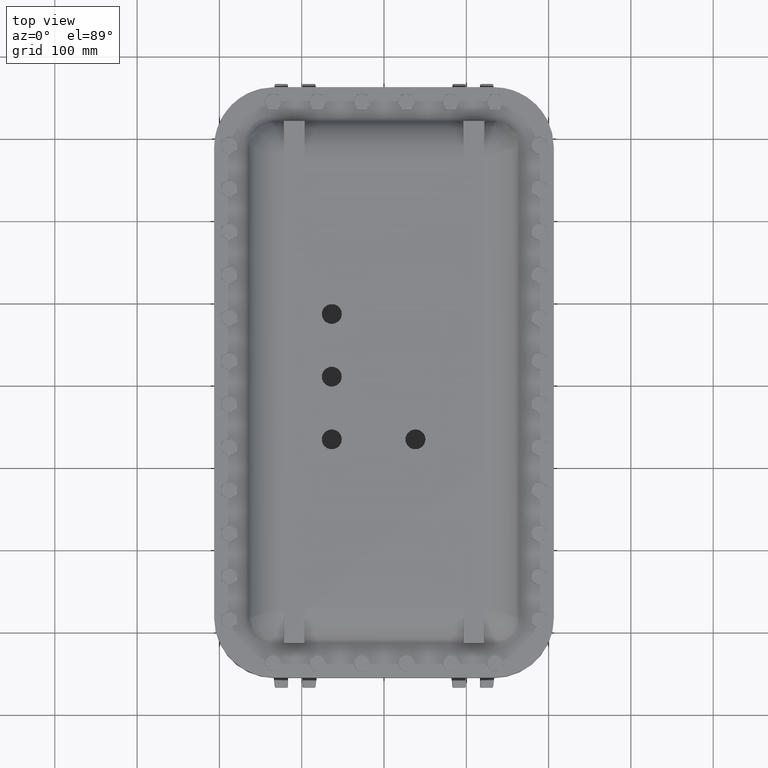
[diagram: clean part render]
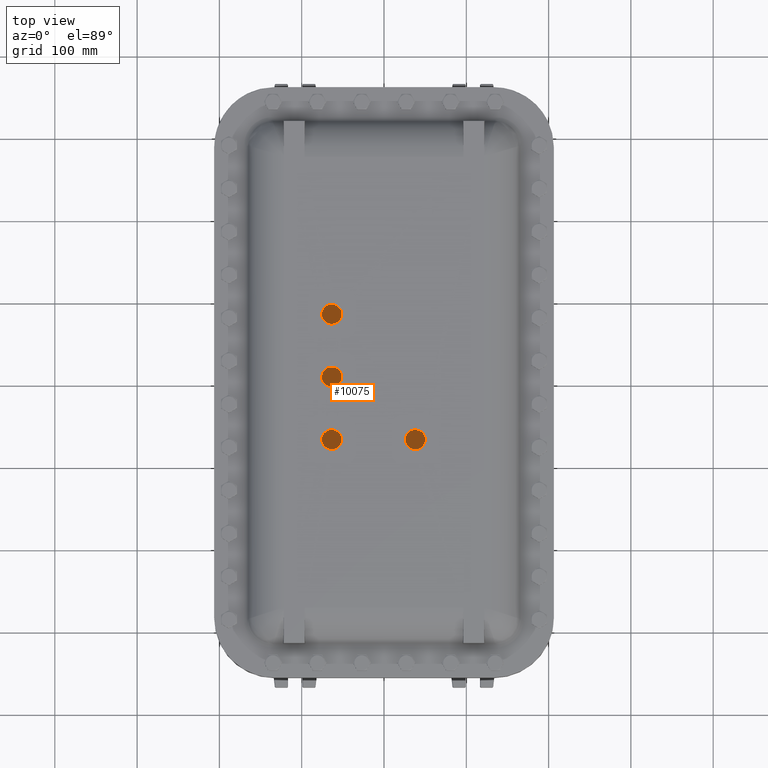
[diagram: same view with one face highlighted and labeled with its STEP entity id]
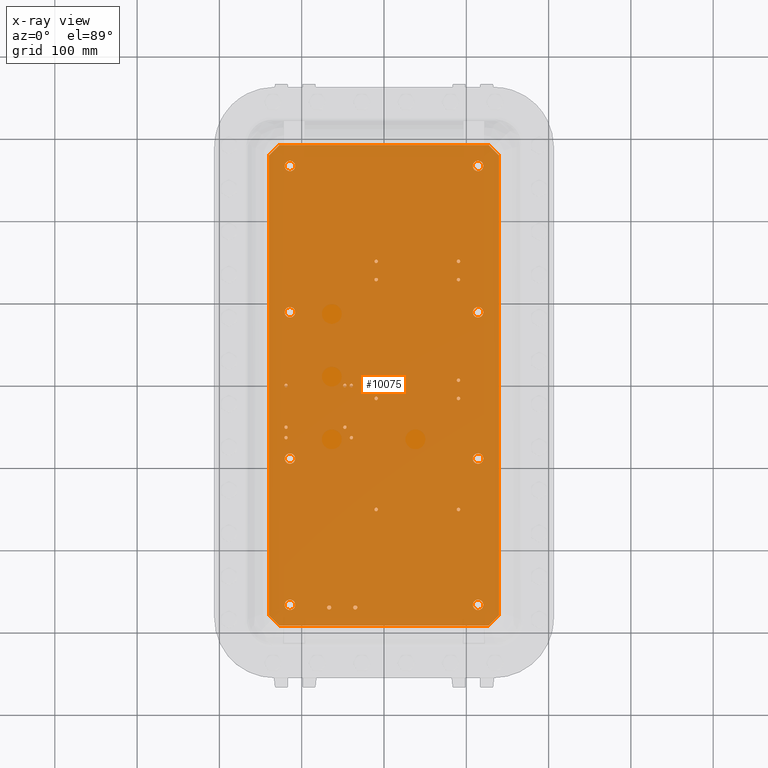
[diagram: x-ray of the same camera — body ghosted, the highlighted face saturated]
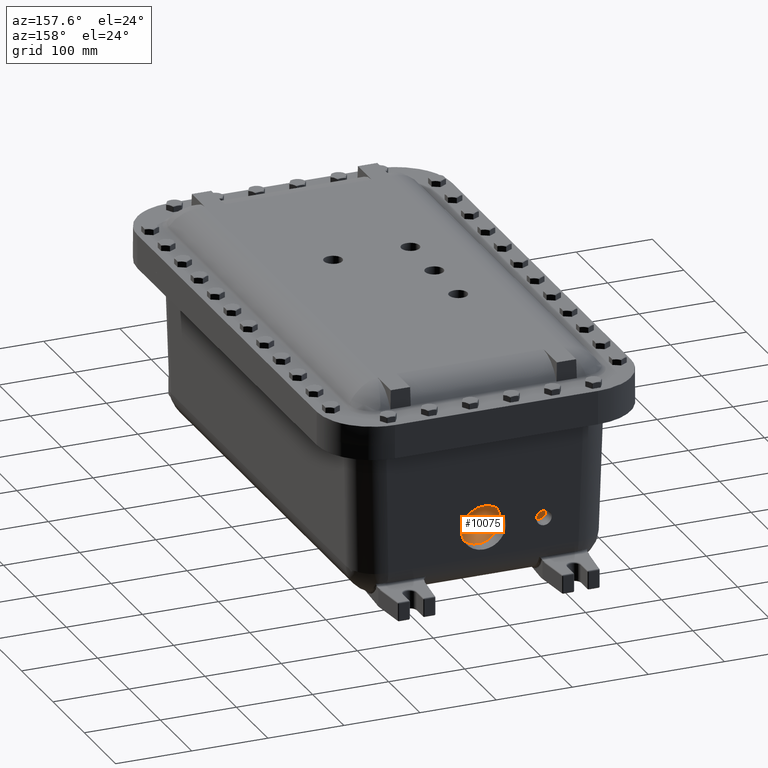
[diagram: same view with one face highlighted and labeled with its STEP entity id]
A machine part, top view. The second image highlights one B-rep face of the part: STEP entity #10075.
The next image is the same camera in x-ray: the body ghosted, the highlighted face saturated — about 99% of this face is hidden behind the body in this view.
A second angle (auxiliary view) of the same face is appended — the face is thin or edge-on in the first view.
In plain terms, the highlighted planar face has unit normal (0, 0, 1).
Its self-contained STEP definition (entity closure, byte-faithful):
#9 = VERTEX_POINT ( 'NONE', #26543 ) ;
#35 = ORIENTED_EDGE ( 'NONE', *, *, #21642, .F. ) ;
#38 = VERTEX_POINT ( 'NONE', #6339 ) ;
#154 = ORIENTED_EDGE ( 'NONE', *, *, #10491, .T. ) ;
#160 = DIRECTION ( 'NONE',  ( -0.0000000000000000000, -0.0000000000000000000, -1.000000000000000000 ) ) ;
#171 = LINE ( 'NONE', #28805, #23419 ) ;
#184 = ORIENTED_EDGE ( 'NONE', *, *, #14988, .F. ) ;
#214 = CARTESIAN_POINT ( 'NONE',  ( 3.645677165354332100, 5.063000000000002400, 0.1060000000000000000 ) ) ;
#220 = EDGE_LOOP ( 'NONE', ( #16998, #16288 ) ) ;
#260 = EDGE_CURVE ( 'NONE', #26400, #9053, #15877, .T. ) ;
#304 = EDGE_CURVE ( 'NONE', #21703, #395, #21855, .T. ) ;
#347 = DIRECTION ( 'NONE',  ( -0.0000000000000000000, -0.0000000000000000000, 1.000000000000000000 ) ) ;
#379 = FACE_BOUND ( 'NONE', #8863, .T. ) ;
#395 = VERTEX_POINT ( 'NONE', #10474 ) ;
#411 = FACE_BOUND ( 'NONE', #11039, .T. ) ;
#451 = VERTEX_POINT ( 'NONE', #26699 ) ;
#510 = CARTESIAN_POINT ( 'NONE',  ( -0.4576771653543309500, 0.2500000000000030500, 0.1060000000000000000 ) ) ;
#659 = AXIS2_PLACEMENT_3D ( 'NONE', #29115, #15625, #2151 ) ;
#677 = DIRECTION ( 'NONE',  ( -0.0000000000000000000, -0.0000000000000000000, -1.000000000000000000 ) ) ;
#748 = AXIS2_PLACEMENT_3D ( 'NONE', #12388, #28123, #14632 ) ;
#749 = CARTESIAN_POINT ( 'NONE',  ( 4.500000000000000900, -3.750000000000000000, 0.1060000000000000100 ) ) ;
#836 = AXIS2_PLACEMENT_3D ( 'NONE', #4348, #20104, #6624 ) ;
#877 = AXIS2_PLACEMENT_3D ( 'NONE', #16961, #3434, #19198 ) ;
#934 = VERTEX_POINT ( 'NONE', #26089 ) ;
#938 = CARTESIAN_POINT ( 'NONE',  ( 3.645677165354332100, -5.936999999999997600, 0.1060000000000000000 ) ) ;
#942 = CARTESIAN_POINT ( 'NONE',  ( 5.000000000000003600, 11.50000000000000200, 0.1060000000000000000 ) ) ;
#958 = AXIS2_PLACEMENT_3D ( 'NONE', #22819, #9339, #25106 ) ;
#959 = DIRECTION ( 'NONE',  ( -0.0000000000000000000, -0.0000000000000000000, 1.000000000000000000 ) ) ;
#1011 = AXIS2_PLACEMENT_3D ( 'NONE', #19708, #6230, #21991 ) ;
#1076 = DIRECTION ( 'NONE',  ( 0.0000000000000000000, 1.000000000000000000, 0.0000000000000000000 ) ) ;
#1088 = VECTOR ( 'NONE', #28928, 39.37007874015748100 ) ;
#1129 = CARTESIAN_POINT ( 'NONE',  ( 4.500000000000000000, 3.249999999999999600, 0.1060000000000000100 ) ) ;
#1142 = CIRCLE ( 'NONE', #23229, 0.2499999999999998100 ) ;
#1187 = AXIS2_PLACEMENT_3D ( 'NONE', #14180, #677, #16442 ) ;
#1232 = CIRCLE ( 'NONE', #17520, 0.08267716535433068700 ) ;
#1243 = CIRCLE ( 'NONE', #4449, 0.07950000000000007100 ) ;
#1277 = ORIENTED_EDGE ( 'NONE', *, *, #13690, .F. ) ;
#1306 = ORIENTED_EDGE ( 'NONE', *, *, #260, .T. ) ;
#1417 = AXIS2_PLACEMENT_3D ( 'NONE', #17438, #3933, #19680 ) ;
#1431 = EDGE_LOOP ( 'NONE', ( #14123, #5275 ) ) ;
#1442 = CARTESIAN_POINT ( 'NONE',  ( -4.499999999999999100, -10.50000000000000200, 0.1060000000000000100 ) ) ;
#1524 = DIRECTION ( 'NONE',  ( -0.0000000000000000000, -0.0000000000000000000, 1.000000000000000000 ) ) ;
#1541 = AXIS2_PLACEMENT_3D ( 'NONE', #13636, #160, #15921 ) ;
#1575 = EDGE_LOOP ( 'NONE', ( #35, #22956 ) ) ;
#1592 = VERTEX_POINT ( 'NONE', #17856 ) ;
#1606 = CIRCLE ( 'NONE', #16165, 0.07950000000000007100 ) ;
#1638 = DIRECTION ( 'NONE',  ( 1.000000000000000000, 0.0000000000000000000, 0.0000000000000000000 ) ) ;
#1711 = DIRECTION ( 'NONE',  ( -0.0000000000000000000, -0.0000000000000000000, 1.000000000000000000 ) ) ;
#1807 = EDGE_LOOP ( 'NONE', ( #21336, #25716 ) ) ;
#1887 = DIRECTION ( 'NONE',  ( -0.0000000000000000000, -0.0000000000000000000, 1.000000000000000000 ) ) ;
#1911 = ORIENTED_EDGE ( 'NONE', *, *, #26582, .F. ) ;
#1926 = DIRECTION ( 'NONE',  ( -0.0000000000000000000, -0.0000000000000000000, 1.000000000000000000 ) ) ;
#1943 = DIRECTION ( 'NONE',  ( -0.0000000000000000000, -0.0000000000000000000, 1.000000000000000000 ) ) ;
#1981 = VERTEX_POINT ( 'NONE', #7150 ) ;
#1992 = DIRECTION ( 'NONE',  ( 0.0000000000000000000, 1.000000000000000000, 0.0000000000000000000 ) ) ;
#1997 = CARTESIAN_POINT ( 'NONE',  ( 4.500000000000000000, 10.50000000000000200, 0.1060000000000000100 ) ) ;
#2069 = VERTEX_POINT ( 'NONE', #18662 ) ;
#2109 = EDGE_LOOP ( 'NONE', ( #18029, #26467 ) ) ;
#2124 = CARTESIAN_POINT ( 'NONE',  ( 3.563000000000001500, 0.2500000000000030500, 0.1060000000000000000 ) ) ;
#2146 = CARTESIAN_POINT ( 'NONE',  ( 5.500000000000001800, 11.00000000000000500, 0.1060000000000000000 ) ) ;
#2151 = DIRECTION ( 'NONE',  ( 1.000000000000000000, 0.0000000000000000000, 0.0000000000000000000 ) ) ;
#2165 = VERTEX_POINT ( 'NONE', #938 ) ;
#2175 = CIRCLE ( 'NONE', #7176, 0.2500000000000008900 ) ;
#2182 = VERTEX_POINT ( 'NONE', #16801 ) ;
#2252 = EDGE_CURVE ( 'NONE', #22846, #23483, #6245, .T. ) ;
#2254 = EDGE_LOOP ( 'NONE', ( #11695, #5026 ) ) ;
#2280 = DIRECTION ( 'NONE',  ( -0.0000000000000000000, -0.0000000000000000000, -1.000000000000000000 ) ) ;
#2339 = ORIENTED_EDGE ( 'NONE', *, *, #21692, .F. ) ;
#2354 = ORIENTED_EDGE ( 'NONE', *, *, #8951, .T. ) ;
#2441 = EDGE_CURVE ( 'NONE', #8564, #9785, #4256, .T. ) ;
#2560 = VERTEX_POINT ( 'NONE', #6921 ) ;
#2598 = DIRECTION ( 'NONE',  ( -0.0000000000000000000, -0.0000000000000000000, 1.000000000000000000 ) ) ;
#2610 = DIRECTION ( 'NONE',  ( -0.0000000000000000000, -0.0000000000000000000, -1.000000000000000000 ) ) ;
#2646 = VERTEX_POINT ( 'NONE', #18523 ) ;
#2647 = CIRCLE ( 'NONE', #27161, 0.08267716535433068700 ) ;
#2648 = CARTESIAN_POINT ( 'NONE',  ( -2.725499999999999800, -10.62499999999999600, 0.1060000000000000400 ) ) ;
#2655 = CARTESIAN_POINT ( 'NONE',  ( -1.561999999999999800, 2.185478394931410600E-015, 0.1060000000000000000 ) ) ;
#2698 = ORIENTED_EDGE ( 'NONE', *, *, #7037, .F. ) ;
#2742 = VERTEX_POINT ( 'NONE', #7508 ) ;
#2806 = ORIENTED_EDGE ( 'NONE', *, *, #11225, .F. ) ;
#2828 = CIRCLE ( 'NONE', #14596, 0.07950000000000007100 ) ;
#2897 = EDGE_LOOP ( 'NONE', ( #2806, #1277 ) ) ;
#2963 = ORIENTED_EDGE ( 'NONE', *, *, #20729, .F. ) ;
#2982 = DIRECTION ( 'NONE',  ( 1.000000000000000000, -2.185478394931410600E-016, 0.0000000000000000000 ) ) ;
#3007 = CARTESIAN_POINT ( 'NONE',  ( -4.766499999999999700, -2.499999999999996900, 0.1060000000000000000 ) ) ;
#3032 = CARTESIAN_POINT ( 'NONE',  ( -1.561999999999999800, 2.185478394931410600E-015, 0.1060000000000000000 ) ) ;
#3111 = DIRECTION ( 'NONE',  ( -0.0000000000000000000, -0.0000000000000000000, 1.000000000000000000 ) ) ;
#3146 = DIRECTION ( 'NONE',  ( -0.0000000000000000000, -0.0000000000000000000, -1.000000000000000000 ) ) ;
#3171 = CIRCLE ( 'NONE', #24393, 0.2500000000000008900 ) ;
#3250 = CIRCLE ( 'NONE', #23620, 0.1004999999999996500 ) ;
#3319 = ORIENTED_EDGE ( 'NONE', *, *, #7251, .T. ) ;
#3346 = CARTESIAN_POINT ( 'NONE',  ( -1.874999999999999600, -1.999999999999997300, 0.1060000000000000000 ) ) ;
#3434 = DIRECTION ( 'NONE',  ( -0.0000000000000000000, -0.0000000000000000000, 1.000000000000000000 ) ) ;
#3524 = AXIS2_PLACEMENT_3D ( 'NONE', #25743, #12235, #27992 ) ;
#3669 = DIRECTION ( 'NONE',  ( 0.0000000000000000000, 1.000000000000000000, 0.0000000000000000000 ) ) ;
#3725 = LINE ( 'NONE', #5230, #4439 ) ;
#3812 = CIRCLE ( 'NONE', #23440, 0.2500000000000008900 ) ;
#3933 = DIRECTION ( 'NONE',  ( -0.0000000000000000000, -0.0000000000000000000, -1.000000000000000000 ) ) ;
#3958 = AXIS2_PLACEMENT_3D ( 'NONE', #2655, #18383, #4894 ) ;
#4143 = CIRCLE ( 'NONE', #1187, 0.2500000000000008900 ) ;
#4167 = CIRCLE ( 'NONE', #12140, 0.08267716535433089500 ) ;
#4231 = DIRECTION ( 'NONE',  ( 0.0000000000000000000, 1.000000000000000000, 0.0000000000000000000 ) ) ;
#4236 = CIRCLE ( 'NONE', #1541, 0.2499999999999998100 ) ;
#4256 = CIRCLE ( 'NONE', #5512, 0.07950000000000007100 ) ;
#4305 = CIRCLE ( 'NONE', #17156, 0.08267716535433089500 ) ;
#4348 = CARTESIAN_POINT ( 'NONE',  ( 3.563000000000001500, -0.6249999999999967800, 0.1060000000000000000 ) ) ;
#4358 = DIRECTION ( 'NONE',  ( 1.000000000000000000, 0.0000000000000000000, 0.0000000000000000000 ) ) ;
#4371 = ORIENTED_EDGE ( 'NONE', *, *, #304, .F. ) ;
#4373 = CARTESIAN_POINT ( 'NONE',  ( 4.500000000000000000, 10.25000000000000200, 0.1060000000000000100 ) ) ;
#4424 = EDGE_LOOP ( 'NONE', ( #11650, #154 ) ) ;
#4427 = EDGE_CURVE ( 'NONE', #19892, #1592, #23541, .T. ) ;
#4439 = VECTOR ( 'NONE', #2982, 39.37007874015748100 ) ;
#4449 = AXIS2_PLACEMENT_3D ( 'NONE', #20257, #6785, #22554 ) ;
#4578 = CIRCLE ( 'NONE', #15328, 0.07950000000000007100 ) ;
#4617 = CARTESIAN_POINT ( 'NONE',  ( -0.4576771653543309500, -0.6249999999999967800, 0.1060000000000000000 ) ) ;
#4756 = DIRECTION ( 'NONE',  ( -0.0000000000000000000, -0.0000000000000000000, 1.000000000000000000 ) ) ;
#4822 = VECTOR ( 'NONE', #21219, 39.37007874015748100 ) ;
#4836 = CIRCLE ( 'NONE', #21793, 0.07950000000000007100 ) ;
#4839 = FACE_BOUND ( 'NONE', #21093, .T. ) ;
#4894 = DIRECTION ( 'NONE',  ( 1.000000000000000000, 0.0000000000000000000, 0.0000000000000000000 ) ) ;
#4910 = CIRCLE ( 'NONE', #8735, 0.07950000000000007100 ) ;
#4931 = CARTESIAN_POINT ( 'NONE',  ( -0.3750000000000002200, -0.6249999999999967800, 0.1060000000000000000 ) ) ;
#4980 = FACE_BOUND ( 'NONE', #1807, .T. ) ;
#4999 = VERTEX_POINT ( 'NONE', #27840 ) ;
#5026 = ORIENTED_EDGE ( 'NONE', *, *, #13277, .F. ) ;
#5043 = EDGE_CURVE ( 'NONE', #10154, #28409, #22795, .T. ) ;
#5211 = CARTESIAN_POINT ( 'NONE',  ( -4.500000000000000000, 10.24999999999999600, 0.1060000000000000100 ) ) ;
#5230 = CARTESIAN_POINT ( 'NONE',  ( -4.999999999999999100, -11.49999999999999600, 0.1060000000000000000 ) ) ;
#5275 = ORIENTED_EDGE ( 'NONE', *, *, #24673, .F. ) ;
#5290 = DIRECTION ( 'NONE',  ( 1.000000000000000000, 0.0000000000000000000, 0.0000000000000000000 ) ) ;
#5332 = CIRCLE ( 'NONE', #3958, 0.07950000000000007100 ) ;
#5512 = AXIS2_PLACEMENT_3D ( 'NONE', #20111, #6626, #22401 ) ;
#5562 = AXIS2_PLACEMENT_3D ( 'NONE', #4931, #20671, #7195 ) ;
#5616 = DIRECTION ( 'NONE',  ( 1.000000000000000000, 0.0000000000000000000, 0.0000000000000000000 ) ) ;
#5641 = FACE_BOUND ( 'NONE', #16180, .T. ) ;
#5666 = FACE_BOUND ( 'NONE', #27517, .T. ) ;
#5909 = AXIS2_PLACEMENT_3D ( 'NONE', #19558, #6087, #21854 ) ;
#5919 = CARTESIAN_POINT ( 'NONE',  ( -1.954499999999999700, 2.195214336984632100E-015, 0.1060000000000000000 ) ) ;
#5982 = CARTESIAN_POINT ( 'NONE',  ( -1.561999999999999800, -2.499999999999996900, 0.1060000000000000000 ) ) ;
#5985 = EDGE_CURVE ( 'NONE', #2742, #13311, #9728, .T. ) ;
#6087 = DIRECTION ( 'NONE',  ( -0.0000000000000000000, -0.0000000000000000000, 1.000000000000000000 ) ) ;
#6130 = VERTEX_POINT ( 'NONE', #16947 ) ;
#6180 = VERTEX_POINT ( 'NONE', #15244 ) ;
#6230 = DIRECTION ( 'NONE',  ( -0.0000000000000000000, -0.0000000000000000000, 1.000000000000000000 ) ) ;
#6240 = VERTEX_POINT ( 'NONE', #10934 ) ;
#6245 = CIRCLE ( 'NONE', #16681, 0.2500000000000008900 ) ;
#6299 = EDGE_LOOP ( 'NONE', ( #13871, #9221 ) ) ;
#6325 = CARTESIAN_POINT ( 'NONE',  ( 3.480322834645670500, -0.6249999999999967800, 0.1060000000000000000 ) ) ;
#6339 = CARTESIAN_POINT ( 'NONE',  ( -4.999999999999999100, -11.49999999999999600, 0.1060000000000000000 ) ) ;
#6357 = FACE_BOUND ( 'NONE', #13959, .T. ) ;
#6389 = FACE_BOUND ( 'NONE', #2109, .T. ) ;
#6449 = ORIENTED_EDGE ( 'NONE', *, *, #21758, .F. ) ;
#6479 = CARTESIAN_POINT ( 'NONE',  ( -0.3750000000000002200, 0.2500000000000030500, 0.1060000000000000000 ) ) ;
#6516 = CARTESIAN_POINT ( 'NONE',  ( -1.274500000000000200, -10.62499999999999600, 0.1060000000000000400 ) ) ;
#6561 = AXIS2_PLACEMENT_3D ( 'NONE', #22056, #8565, #24324 ) ;
#6598 = DIRECTION ( 'NONE',  ( -0.0000000000000000000, -0.0000000000000000000, 1.000000000000000000 ) ) ;
#6624 = DIRECTION ( 'NONE',  ( 1.000000000000000000, 0.0000000000000000000, 0.0000000000000000000 ) ) ;
#6626 = DIRECTION ( 'NONE',  ( -0.0000000000000000000, -0.0000000000000000000, 1.000000000000000000 ) ) ;
#6683 = ORIENTED_EDGE ( 'NONE', *, *, #12033, .F. ) ;
#6783 = EDGE_LOOP ( 'NONE', ( #7575, #9959 ) ) ;
#6785 = DIRECTION ( 'NONE',  ( -0.0000000000000000000, -0.0000000000000000000, 1.000000000000000000 ) ) ;
#6821 = EDGE_CURVE ( 'NONE', #28409, #25891, #171, .T. ) ;
#6921 = CARTESIAN_POINT ( 'NONE',  ( 3.480322834645670500, 5.063000000000002400, 0.1060000000000000000 ) ) ;
#7037 = EDGE_CURVE ( 'NONE', #9089, #934, #13198, .T. ) ;
#7150 = CARTESIAN_POINT ( 'NONE',  ( -1.475499999999999600, -10.62499999999999600, 0.1060000000000000400 ) ) ;
#7176 = AXIS2_PLACEMENT_3D ( 'NONE', #9148, #24910, #11413 ) ;
#7195 = DIRECTION ( 'NONE',  ( 1.000000000000000000, 0.0000000000000000000, 0.0000000000000000000 ) ) ;
#7251 = EDGE_CURVE ( 'NONE', #2069, #24574, #9670, .T. ) ;
#7493 = CARTESIAN_POINT ( 'NONE',  ( -0.3750000000000002200, 5.938000000000002400, 0.1060000000000000000 ) ) ;
#7501 = DIRECTION ( 'NONE',  ( -0.0000000000000000000, -0.0000000000000000000, 1.000000000000000000 ) ) ;
#7508 = CARTESIAN_POINT ( 'NONE',  ( -0.2923228346456695500, 5.938000000000002400, 0.1060000000000000000 ) ) ;
#7575 = ORIENTED_EDGE ( 'NONE', *, *, #18911, .T. ) ;
#7690 = EDGE_CURVE ( 'NONE', #2165, #25605, #23743, .T. ) ;
#7837 = VERTEX_POINT ( 'NONE', #21716 ) ;
#8036 = ORIENTED_EDGE ( 'NONE', *, *, #29032, .F. ) ;
#8083 = AXIS2_PLACEMENT_3D ( 'NONE', #3346, #19113, #5616 ) ;
#8213 = VERTEX_POINT ( 'NONE', #3007 ) ;
#8267 = DIRECTION ( 'NONE',  ( 1.000000000000000000, 0.0000000000000000000, 0.0000000000000000000 ) ) ;
#8403 = CIRCLE ( 'NONE', #27974, 0.07950000000000007100 ) ;
#8418 = VERTEX_POINT ( 'NONE', #24251 ) ;
#8491 = VERTEX_POINT ( 'NONE', #8690 ) ;
#8564 = VERTEX_POINT ( 'NONE', #11359 ) ;
#8565 = DIRECTION ( 'NONE',  ( -0.0000000000000000000, -0.0000000000000000000, -1.000000000000000000 ) ) ;
#8625 = EDGE_CURVE ( 'NONE', #2646, #23350, #10676, .T. ) ;
#8629 = CARTESIAN_POINT ( 'NONE',  ( -0.2923228346456695500, 0.2500000000000030500, 0.1060000000000000000 ) ) ;
#8690 = CARTESIAN_POINT ( 'NONE',  ( -1.482499999999999900, -2.499999999999996900, 0.1060000000000000000 ) ) ;
#8715 = ORIENTED_EDGE ( 'NONE', *, *, #29019, .T. ) ;
#8735 = AXIS2_PLACEMENT_3D ( 'NONE', #3032, #18772, #5290 ) ;
#8746 = DIRECTION ( 'NONE',  ( 1.000000000000000000, 0.0000000000000000000, 0.0000000000000000000 ) ) ;
#8851 = EDGE_CURVE ( 'NONE', #6130, #7837, #1142, .T. ) ;
#8863 = EDGE_LOOP ( 'NONE', ( #11680, #13180 ) ) ;
#8872 = AXIS2_PLACEMENT_3D ( 'NONE', #14989, #1524, #17272 ) ;
#8873 = EDGE_LOOP ( 'NONE', ( #8036, #12915 ) ) ;
#8951 = EDGE_CURVE ( 'NONE', #16619, #6240, #28606, .T. ) ;
#9044 = AXIS2_PLACEMENT_3D ( 'NONE', #5982, #21735, #8267 ) ;
#9053 = VERTEX_POINT ( 'NONE', #11232 ) ;
#9089 = VERTEX_POINT ( 'NONE', #4617 ) ;
#9101 = CARTESIAN_POINT ( 'NONE',  ( 3.563000000000001500, 5.938000000000002400, 0.1060000000000000000 ) ) ;
#9148 = CARTESIAN_POINT ( 'NONE',  ( 4.500000000000000900, -10.50000000000000200, 0.1060000000000000100 ) ) ;
#9217 = CARTESIAN_POINT ( 'NONE',  ( 4.500000000000000000, 3.749999999999999100, 0.1060000000000000100 ) ) ;
#9221 = ORIENTED_EDGE ( 'NONE', *, *, #23190, .F. ) ;
#9308 = VERTEX_POINT ( 'NONE', #27864 ) ;
#9339 = DIRECTION ( 'NONE',  ( -0.0000000000000000000, -0.0000000000000000000, -1.000000000000000000 ) ) ;
#9341 = CIRCLE ( 'NONE', #15049, 0.08267716535433068700 ) ;
#9367 = PLANE ( 'NONE',  #9863 ) ;
#9371 = DIRECTION ( 'NONE',  ( -0.0000000000000000000, -0.0000000000000000000, 1.000000000000000000 ) ) ;
#9397 = CIRCLE ( 'NONE', #12572, 0.08267716535433089500 ) ;
#9407 = EDGE_CURVE ( 'NONE', #9912, #1981, #3250, .T. ) ;
#9463 = DIRECTION ( 'NONE',  ( -0.7071067811865483500, 0.7071067811865468000, 0.0000000000000000000 ) ) ;
#9670 = CIRCLE ( 'NONE', #6561, 0.2499999999999998100 ) ;
#9728 = CIRCLE ( 'NONE', #27498, 0.08267716535433068700 ) ;
#9736 = CIRCLE ( 'NONE', #12909, 0.2500000000000008900 ) ;
#9747 = ORIENTED_EDGE ( 'NONE', *, *, #9407, .F. ) ;
#9753 = DIRECTION ( 'NONE',  ( 1.000000000000000000, 0.0000000000000000000, 0.0000000000000000000 ) ) ;
#9785 = VERTEX_POINT ( 'NONE', #5919 ) ;
#9829 = DIRECTION ( 'NONE',  ( 0.7071067811865474600, -0.7071067811865474600, -0.0000000000000000000 ) ) ;
#9863 = AXIS2_PLACEMENT_3D ( 'NONE', #16074, #25132, #11641 ) ;
#9876 = DIRECTION ( 'NONE',  ( -0.0000000000000000000, -0.0000000000000000000, 1.000000000000000000 ) ) ;
#9912 = VERTEX_POINT ( 'NONE', #6516 ) ;
#9939 = ORIENTED_EDGE ( 'NONE', *, *, #8851, .T. ) ;
#9959 = ORIENTED_EDGE ( 'NONE', *, *, #21003, .T. ) ;
#10075 = ADVANCED_FACE ( 'NONE', ( #12403, #24372, #25797, #6389, #411, #23667, #17673, #11697, #5666, #28953, #22949, #16978, #10990, #4980, #4839, #10855, #24338, #18331, #12371, #6357, #379, #23633, #17637, #11659, #5641, #28924, #22918, #16948 ), #9367, .T. ) ;
#10154 = VERTEX_POINT ( 'NONE', #25428 ) ;
#10229 = VECTOR ( 'NONE', #19317, 39.37007874015748100 ) ;
#10239 = CARTESIAN_POINT ( 'NONE',  ( -1.375000000000000000, -10.62499999999999600, 0.1060000000000000400 ) ) ;
#10249 = DIRECTION ( 'NONE',  ( -0.0000000000000000000, -0.0000000000000000000, 1.000000000000000000 ) ) ;
#10293 = VERTEX_POINT ( 'NONE', #19382 ) ;
#10423 = EDGE_CURVE ( 'NONE', #9785, #8564, #4578, .T. ) ;
#10474 = CARTESIAN_POINT ( 'NONE',  ( -1.795499999999999400, -1.999999999999997300, 0.1060000000000000000 ) ) ;
#10491 = EDGE_CURVE ( 'NONE', #24765, #23967, #3171, .T. ) ;
#10676 = CIRCLE ( 'NONE', #23786, 0.08267716535433068700 ) ;
#10709 = ORIENTED_EDGE ( 'NONE', *, *, #8625, .F. ) ;
#10719 = EDGE_CURVE ( 'NONE', #9, #27766, #4910, .T. ) ;
#10855 = FACE_BOUND ( 'NONE', #25146, .T. ) ;
#10888 = CARTESIAN_POINT ( 'NONE',  ( -1.954499999999999700, -1.999999999999997300, 0.1060000000000000000 ) ) ;
#10934 = CARTESIAN_POINT ( 'NONE',  ( 4.500000000000000900, -3.250000000000000400, 0.1060000000000000100 ) ) ;
#10990 = FACE_BOUND ( 'NONE', #8873, .T. ) ;
#11023 = CARTESIAN_POINT ( 'NONE',  ( -4.499999999999999100, -10.25000000000000200, 0.1060000000000000100 ) ) ;
#11039 = EDGE_LOOP ( 'NONE', ( #25046, #24008 ) ) ;
#11058 = EDGE_CURVE ( 'NONE', #26269, #22930, #18986, .T. ) ;
#11101 = DIRECTION ( 'NONE',  ( -0.0000000000000000000, -0.0000000000000000000, 1.000000000000000000 ) ) ;
#11127 = EDGE_LOOP ( 'NONE', ( #6683, #6449 ) ) ;
#11209 = VERTEX_POINT ( 'NONE', #9217 ) ;
#11225 = EDGE_CURVE ( 'NONE', #11664, #2560, #4167, .T. ) ;
#11232 = CARTESIAN_POINT ( 'NONE',  ( -4.500000000000000000, 10.74999999999999800, 0.1060000000000000100 ) ) ;
#11346 = CARTESIAN_POINT ( 'NONE',  ( -2.524500000000000200, -10.62499999999999600, 0.1060000000000000400 ) ) ;
#11359 = CARTESIAN_POINT ( 'NONE',  ( -1.795499999999999400, 2.185478394931410600E-015, 0.1060000000000000000 ) ) ;
#11374 = DIRECTION ( 'NONE',  ( 1.000000000000000000, 0.0000000000000000000, 0.0000000000000000000 ) ) ;
#11405 = EDGE_CURVE ( 'NONE', #23506, #11209, #13046, .T. ) ;
#11413 = DIRECTION ( 'NONE',  ( 0.0000000000000000000, 1.000000000000000000, 0.0000000000000000000 ) ) ;
#11449 = AXIS2_PLACEMENT_3D ( 'NONE', #15416, #1943, #17681 ) ;
#11580 = CARTESIAN_POINT ( 'NONE',  ( 3.563000000000001500, 5.063000000000002400, 0.1060000000000000000 ) ) ;
#11586 = AXIS2_PLACEMENT_3D ( 'NONE', #15396, #1926, #17663 ) ;
#11608 = CIRCLE ( 'NONE', #5909, 0.08267716535433089500 ) ;
#11641 = DIRECTION ( 'NONE',  ( 1.000000000000000000, 0.0000000000000000000, -0.0000000000000000000 ) ) ;
#11650 = ORIENTED_EDGE ( 'NONE', *, *, #20684, .T. ) ;
#11658 = EDGE_CURVE ( 'NONE', #26510, #27972, #2828, .T. ) ;
#11659 = FACE_BOUND ( 'NONE', #26703, .T. ) ;
#11664 = VERTEX_POINT ( 'NONE', #214 ) ;
#11680 = ORIENTED_EDGE ( 'NONE', *, *, #17136, .T. ) ;
#11695 = ORIENTED_EDGE ( 'NONE', *, *, #18151, .F. ) ;
#11697 = FACE_BOUND ( 'NONE', #14499, .T. ) ;
#11941 = CIRCLE ( 'NONE', #836, 0.08267716535433089500 ) ;
#12033 = EDGE_CURVE ( 'NONE', #25019, #13909, #11608, .T. ) ;
#12041 = CARTESIAN_POINT ( 'NONE',  ( -0.4576771653543309500, 5.063000000000002400, 0.1060000000000000000 ) ) ;
#12047 = CIRCLE ( 'NONE', #958, 0.2500000000000008900 ) ;
#12088 = CARTESIAN_POINT ( 'NONE',  ( -4.999999999999999100, -11.49999999999999600, 0.1060000000000000000 ) ) ;
#12140 = AXIS2_PLACEMENT_3D ( 'NONE', #11580, #27332, #13835 ) ;
#12155 = DIRECTION ( 'NONE',  ( -0.0000000000000000000, -0.0000000000000000000, -1.000000000000000000 ) ) ;
#12185 = CARTESIAN_POINT ( 'NONE',  ( -0.4576771653543309500, 5.938000000000002400, 0.1060000000000000000 ) ) ;
#12235 = DIRECTION ( 'NONE',  ( -0.0000000000000000000, -0.0000000000000000000, -1.000000000000000000 ) ) ;
#12371 = FACE_BOUND ( 'NONE', #14453, .T. ) ;
#12388 = CARTESIAN_POINT ( 'NONE',  ( -4.687000000000000300, -1.999999999999997300, 0.1060000000000000000 ) ) ;
#12392 = EDGE_CURVE ( 'NONE', #1592, #19892, #11941, .T. ) ;
#12395 = DIRECTION ( 'NONE',  ( -0.0000000000000000000, -0.0000000000000000000, 1.000000000000000000 ) ) ;
#12403 = FACE_BOUND ( 'NONE', #19332, .T. ) ;
#12475 = CIRCLE ( 'NONE', #748, 0.07950000000000007100 ) ;
#12492 = DIRECTION ( 'NONE',  ( 1.000000000000000000, 0.0000000000000000000, 0.0000000000000000000 ) ) ;
#12509 = DIRECTION ( 'NONE',  ( -0.0000000000000000000, -0.0000000000000000000, -1.000000000000000000 ) ) ;
#12528 = AXIS2_PLACEMENT_3D ( 'NONE', #23359, #9876, #25636 ) ;
#12572 = AXIS2_PLACEMENT_3D ( 'NONE', #26628, #13138, #28897 ) ;
#12606 = CARTESIAN_POINT ( 'NONE',  ( 3.480322834645670500, 5.938000000000002400, 0.1060000000000000000 ) ) ;
#12646 = CARTESIAN_POINT ( 'NONE',  ( -1.641500000000000000, -2.499999999999996900, 0.1060000000000000000 ) ) ;
#12774 = VERTEX_POINT ( 'NONE', #23934 ) ;
#12893 = CIRCLE ( 'NONE', #877, 0.08267716535433068700 ) ;
#12909 = AXIS2_PLACEMENT_3D ( 'NONE', #16654, #3146, #18885 ) ;
#12915 = ORIENTED_EDGE ( 'NONE', *, *, #10719, .F. ) ;
#13046 = CIRCLE ( 'NONE', #28746, 0.2499999999999998100 ) ;
#13070 = ORIENTED_EDGE ( 'NONE', *, *, #22573, .T. ) ;
#13138 = DIRECTION ( 'NONE',  ( -0.0000000000000000000, -0.0000000000000000000, 1.000000000000000000 ) ) ;
#13180 = ORIENTED_EDGE ( 'NONE', *, *, #11405, .T. ) ;
#13198 = CIRCLE ( 'NONE', #14666, 0.08267716535433068700 ) ;
#13277 = EDGE_CURVE ( 'NONE', #8213, #8418, #4836, .T. ) ;
#13311 = VERTEX_POINT ( 'NONE', #12185 ) ;
#13345 = CARTESIAN_POINT ( 'NONE',  ( -1.482499999999999900, 2.185478394931410600E-015, 0.1060000000000000000 ) ) ;
#13636 = CARTESIAN_POINT ( 'NONE',  ( -4.500000000000000000, -3.500000000000001300, 0.1060000000000000100 ) ) ;
#13641 = VERTEX_POINT ( 'NONE', #2146 ) ;
#13690 = EDGE_CURVE ( 'NONE', #2560, #11664, #26332, .T. ) ;
#13762 = LINE ( 'NONE', #15424, #1088 ) ;
#13829 = CARTESIAN_POINT ( 'NONE',  ( 3.563000000000001500, 5.063000000000002400, 0.1060000000000000000 ) ) ;
#13835 = DIRECTION ( 'NONE',  ( 1.000000000000000000, 0.0000000000000000000, 0.0000000000000000000 ) ) ;
#13871 = ORIENTED_EDGE ( 'NONE', *, *, #26894, .F. ) ;
#13909 = VERTEX_POINT ( 'NONE', #17091 ) ;
#13959 = EDGE_LOOP ( 'NONE', ( #17165, #2354 ) ) ;
#13987 = CARTESIAN_POINT ( 'NONE',  ( 5.500000000000001800, 11.00000000000000400, 0.1060000000000000000 ) ) ;
#14013 = ORIENTED_EDGE ( 'NONE', *, *, #17561, .T. ) ;
#14020 = EDGE_CURVE ( 'NONE', #25605, #2165, #9397, .T. ) ;
#14099 = CARTESIAN_POINT ( 'NONE',  ( 4.500000000000000000, 10.75000000000000400, 0.1060000000000000100 ) ) ;
#14123 = ORIENTED_EDGE ( 'NONE', *, *, #11058, .F. ) ;
#14173 = ORIENTED_EDGE ( 'NONE', *, *, #16538, .T. ) ;
#14180 = CARTESIAN_POINT ( 'NONE',  ( 4.500000000000000900, -10.50000000000000200, 0.1060000000000000100 ) ) ;
#14187 = CARTESIAN_POINT ( 'NONE',  ( -0.2923228346456695500, 5.063000000000002400, 0.1060000000000000000 ) ) ;
#14218 = VERTEX_POINT ( 'NONE', #510 ) ;
#14268 = VECTOR ( 'NONE', #9829, 39.37007874015748900 ) ;
#14285 = EDGE_CURVE ( 'NONE', #38, #451, #3725, .T. ) ;
#14412 = EDGE_CURVE ( 'NONE', #23350, #2646, #12893, .T. ) ;
#14453 = EDGE_LOOP ( 'NONE', ( #9747, #2339 ) ) ;
#14455 = CARTESIAN_POINT ( 'NONE',  ( -4.687000000000000300, -2.499999999999996900, 0.1060000000000000000 ) ) ;
#14499 = EDGE_LOOP ( 'NONE', ( #22413, #20372 ) ) ;
#14560 = DIRECTION ( 'NONE',  ( -0.0000000000000000000, -0.0000000000000000000, -1.000000000000000000 ) ) ;
#14596 = AXIS2_PLACEMENT_3D ( 'NONE', #16081, #2598, #18317 ) ;
#14632 = DIRECTION ( 'NONE',  ( 1.000000000000000000, 0.0000000000000000000, 0.0000000000000000000 ) ) ;
#14666 = AXIS2_PLACEMENT_3D ( 'NONE', #18247, #4756, #20500 ) ;
#14677 = CIRCLE ( 'NONE', #659, 0.08267716535433068700 ) ;
#14694 = CIRCLE ( 'NONE', #1011, 0.07950000000000007100 ) ;
#14763 = AXIS2_PLACEMENT_3D ( 'NONE', #28052, #14560, #1076 ) ;
#14907 = LINE ( 'NONE', #23003, #26198 ) ;
#14956 = LINE ( 'NONE', #12088, #14268 ) ;
#14988 = EDGE_CURVE ( 'NONE', #14218, #23144, #9341, .T. ) ;
#14989 = CARTESIAN_POINT ( 'NONE',  ( -0.3750000000000002200, 5.938000000000002400, 0.1060000000000000000 ) ) ;
#15049 = AXIS2_PLACEMENT_3D ( 'NONE', #28616, #15118, #1638 ) ;
#15118 = DIRECTION ( 'NONE',  ( -0.0000000000000000000, -0.0000000000000000000, 1.000000000000000000 ) ) ;
#15191 = CARTESIAN_POINT ( 'NONE',  ( -4.687000000000000300, -2.499999999999996900, 0.1060000000000000000 ) ) ;
#15244 = CARTESIAN_POINT ( 'NONE',  ( 5.500000000000000000, -11.00000000000000200, 0.1060000000000000000 ) ) ;
#15328 = AXIS2_PLACEMENT_3D ( 'NONE', #15357, #1887, #17624 ) ;
#15357 = CARTESIAN_POINT ( 'NONE',  ( -1.874999999999999600, 2.185478394931410600E-015, 0.1060000000000000000 ) ) ;
#15396 = CARTESIAN_POINT ( 'NONE',  ( -1.375000000000000000, -10.62499999999999600, 0.1060000000000000400 ) ) ;
#15416 = CARTESIAN_POINT ( 'NONE',  ( -2.625000000000000000, -10.62499999999999600, 0.1060000000000000400 ) ) ;
#15424 = CARTESIAN_POINT ( 'NONE',  ( 5.500000000000000000, -11.00000000000000200, 0.1060000000000000000 ) ) ;
#15462 = DIRECTION ( 'NONE',  ( -0.0000000000000000000, -0.0000000000000000000, -1.000000000000000000 ) ) ;
#15551 = ORIENTED_EDGE ( 'NONE', *, *, #21118, .T. ) ;
#15625 = DIRECTION ( 'NONE',  ( -0.0000000000000000000, -0.0000000000000000000, 1.000000000000000000 ) ) ;
#15746 = CARTESIAN_POINT ( 'NONE',  ( 4.500000000000000000, 10.50000000000000200, 0.1060000000000000100 ) ) ;
#15877 = CIRCLE ( 'NONE', #3524, 0.2500000000000008900 ) ;
#15921 = DIRECTION ( 'NONE',  ( 0.0000000000000000000, 1.000000000000000000, 0.0000000000000000000 ) ) ;
#16074 = CARTESIAN_POINT ( 'NONE',  ( -16.49999999999997900, -1.748382715945128500E-014, 0.1060000000000000000 ) ) ;
#16081 = CARTESIAN_POINT ( 'NONE',  ( -4.687000000000000300, 2.185478394931410600E-015, 0.1060000000000000000 ) ) ;
#16096 = CARTESIAN_POINT ( 'NONE',  ( 4.500000000000000000, 3.499999999999999100, 0.1060000000000000100 ) ) ;
#16114 = DIRECTION ( 'NONE',  ( 1.000000000000000000, 0.0000000000000000000, 0.0000000000000000000 ) ) ;
#16117 = CARTESIAN_POINT ( 'NONE',  ( -0.4576771653543309500, -5.936999999999997600, 0.1060000000000000000 ) ) ;
#16165 = AXIS2_PLACEMENT_3D ( 'NONE', #20977, #7501, #23246 ) ;
#16180 = EDGE_LOOP ( 'NONE', ( #8715, #1306 ) ) ;
#16219 = LINE ( 'NONE', #17086, #10229 ) ;
#16288 = ORIENTED_EDGE ( 'NONE', *, *, #14020, .F. ) ;
#16442 = DIRECTION ( 'NONE',  ( 0.0000000000000000000, 1.000000000000000000, 0.0000000000000000000 ) ) ;
#16538 = EDGE_CURVE ( 'NONE', #25891, #12774, #14907, .T. ) ;
#16619 = VERTEX_POINT ( 'NONE', #749 ) ;
#16624 = CARTESIAN_POINT ( 'NONE',  ( -0.3750000000000002200, 5.063000000000002400, 0.1060000000000000000 ) ) ;
#16654 = CARTESIAN_POINT ( 'NONE',  ( -4.499999999999999100, -10.50000000000000200, 0.1060000000000000100 ) ) ;
#16681 = AXIS2_PLACEMENT_3D ( 'NONE', #1442, #17190, #3669 ) ;
#16724 = DIRECTION ( 'NONE',  ( 1.000000000000000000, 0.0000000000000000000, 0.0000000000000000000 ) ) ;
#16801 = CARTESIAN_POINT ( 'NONE',  ( 4.500000000000000900, -10.75000000000000400, 0.1060000000000000100 ) ) ;
#16947 = CARTESIAN_POINT ( 'NONE',  ( -4.500000000000000000, -3.750000000000001300, 0.1060000000000000100 ) ) ;
#16948 = FACE_OUTER_BOUND ( 'NONE', #22397, .T. ) ;
#16961 = CARTESIAN_POINT ( 'NONE',  ( -0.3750000000000002200, -5.936999999999997600, 0.1060000000000000000 ) ) ;
#16978 = FACE_BOUND ( 'NONE', #27307, .T. ) ;
#16998 = ORIENTED_EDGE ( 'NONE', *, *, #7690, .F. ) ;
#17043 = CARTESIAN_POINT ( 'NONE',  ( -4.766499999999999700, -1.999999999999997300, 0.1060000000000000000 ) ) ;
#17058 = EDGE_CURVE ( 'NONE', #24187, #9308, #4305, .T. ) ;
#17074 = CARTESIAN_POINT ( 'NONE',  ( 3.645677165354332100, 0.2500000000000030500, 0.1060000000000000000 ) ) ;
#17086 = CARTESIAN_POINT ( 'NONE',  ( 5.000000000000000900, -11.50000000000000000, 0.1060000000000000000 ) ) ;
#17091 = CARTESIAN_POINT ( 'NONE',  ( 3.480322834645670500, 0.2500000000000030500, 0.1060000000000000000 ) ) ;
#17136 = EDGE_CURVE ( 'NONE', #11209, #23506, #25469, .T. ) ;
#17156 = AXIS2_PLACEMENT_3D ( 'NONE', #9101, #24869, #11374 ) ;
#17165 = ORIENTED_EDGE ( 'NONE', *, *, #22141, .T. ) ;
#17190 = DIRECTION ( 'NONE',  ( -0.0000000000000000000, -0.0000000000000000000, -1.000000000000000000 ) ) ;
#17272 = DIRECTION ( 'NONE',  ( 1.000000000000000000, 0.0000000000000000000, 0.0000000000000000000 ) ) ;
#17438 = CARTESIAN_POINT ( 'NONE',  ( 4.500000000000000900, -3.500000000000000400, 0.1060000000000000100 ) ) ;
#17448 = DIRECTION ( 'NONE',  ( 1.000000000000000000, 0.0000000000000000000, 0.0000000000000000000 ) ) ;
#17483 = ORIENTED_EDGE ( 'NONE', *, *, #10423, .F. ) ;
#17511 = ORIENTED_EDGE ( 'NONE', *, *, #19270, .T. ) ;
#17520 = AXIS2_PLACEMENT_3D ( 'NONE', #16624, #3111, #18852 ) ;
#17561 = EDGE_CURVE ( 'NONE', #13641, #10154, #22958, .T. ) ;
#17624 = DIRECTION ( 'NONE',  ( 1.000000000000000000, 0.0000000000000000000, 0.0000000000000000000 ) ) ;
#17637 = FACE_BOUND ( 'NONE', #22127, .T. ) ;
#17663 = DIRECTION ( 'NONE',  ( 1.000000000000000000, 0.0000000000000000000, 0.0000000000000000000 ) ) ;
#17673 = FACE_BOUND ( 'NONE', #22298, .T. ) ;
#17681 = DIRECTION ( 'NONE',  ( 1.000000000000000000, 0.0000000000000000000, 0.0000000000000000000 ) ) ;
#17732 = DIRECTION ( 'NONE',  ( -0.0000000000000000000, -0.0000000000000000000, -1.000000000000000000 ) ) ;
#17856 = CARTESIAN_POINT ( 'NONE',  ( 3.645677165354332100, -0.6249999999999967800, 0.1060000000000000000 ) ) ;
#17858 = DIRECTION ( 'NONE',  ( -0.0000000000000000000, -0.0000000000000000000, 1.000000000000000000 ) ) ;
#18017 = ORIENTED_EDGE ( 'NONE', *, *, #14285, .T. ) ;
#18019 = DIRECTION ( 'NONE',  ( 0.0000000000000000000, 1.000000000000000000, 0.0000000000000000000 ) ) ;
#18029 = ORIENTED_EDGE ( 'NONE', *, *, #5985, .F. ) ;
#18077 = EDGE_CURVE ( 'NONE', #13311, #2742, #25065, .T. ) ;
#18151 = EDGE_CURVE ( 'NONE', #8418, #8213, #24351, .T. ) ;
#18202 = AXIS2_PLACEMENT_3D ( 'NONE', #23723, #10249, #25999 ) ;
#18247 = CARTESIAN_POINT ( 'NONE',  ( -0.3750000000000002200, -0.6249999999999967800, 0.1060000000000000000 ) ) ;
#18298 = ORIENTED_EDGE ( 'NONE', *, *, #2441, .F. ) ;
#18317 = DIRECTION ( 'NONE',  ( 1.000000000000000000, 0.0000000000000000000, 0.0000000000000000000 ) ) ;
#18331 = FACE_BOUND ( 'NONE', #1431, .T. ) ;
#18332 = DIRECTION ( 'NONE',  ( 0.0000000000000000000, 1.000000000000000000, 0.0000000000000000000 ) ) ;
#18383 = DIRECTION ( 'NONE',  ( -0.0000000000000000000, -0.0000000000000000000, 1.000000000000000000 ) ) ;
#18523 = CARTESIAN_POINT ( 'NONE',  ( -0.2923228346456695500, -5.936999999999997600, 0.1060000000000000000 ) ) ;
#18639 = VERTEX_POINT ( 'NONE', #17043 ) ;
#18662 = CARTESIAN_POINT ( 'NONE',  ( -4.500000000000000000, 3.749999999999997800, 0.1060000000000000100 ) ) ;
#18744 = ORIENTED_EDGE ( 'NONE', *, *, #19385, .T. ) ;
#18772 = DIRECTION ( 'NONE',  ( -0.0000000000000000000, -0.0000000000000000000, 1.000000000000000000 ) ) ;
#18824 = CIRCLE ( 'NONE', #11449, 0.1004999999999996500 ) ;
#18852 = DIRECTION ( 'NONE',  ( 1.000000000000000000, 0.0000000000000000000, 0.0000000000000000000 ) ) ;
#18885 = DIRECTION ( 'NONE',  ( 0.0000000000000000000, 1.000000000000000000, 0.0000000000000000000 ) ) ;
#18911 = EDGE_CURVE ( 'NONE', #10293, #2182, #2175, .T. ) ;
#18932 = ORIENTED_EDGE ( 'NONE', *, *, #19729, .T. ) ;
#18986 = CIRCLE ( 'NONE', #24802, 0.1004999999999996500 ) ;
#19113 = DIRECTION ( 'NONE',  ( -0.0000000000000000000, -0.0000000000000000000, 1.000000000000000000 ) ) ;
#19116 = AXIS2_PLACEMENT_3D ( 'NONE', #2124, #17858, #4358 ) ;
#19198 = DIRECTION ( 'NONE',  ( 1.000000000000000000, 0.0000000000000000000, 0.0000000000000000000 ) ) ;
#19270 = EDGE_CURVE ( 'NONE', #6180, #13641, #13762, .T. ) ;
#19317 = DIRECTION ( 'NONE',  ( 0.7071067811865483500, 0.7071067811865468000, 0.0000000000000000000 ) ) ;
#19332 = EDGE_LOOP ( 'NONE', ( #26999, #184 ) ) ;
#19382 = CARTESIAN_POINT ( 'NONE',  ( 4.500000000000000900, -10.25000000000000200, 0.1060000000000000100 ) ) ;
#19385 = EDGE_CURVE ( 'NONE', #7837, #6130, #4236, .T. ) ;
#19408 = AXIS2_PLACEMENT_3D ( 'NONE', #15191, #1711, #17448 ) ;
#19558 = CARTESIAN_POINT ( 'NONE',  ( 3.563000000000001500, 0.2500000000000030500, 0.1060000000000000000 ) ) ;
#19610 = ORIENTED_EDGE ( 'NONE', *, *, #5043, .T. ) ;
#19680 = DIRECTION ( 'NONE',  ( 0.0000000000000000000, 1.000000000000000000, 0.0000000000000000000 ) ) ;
#19708 = CARTESIAN_POINT ( 'NONE',  ( -4.687000000000000300, 2.185478394931410600E-015, 0.1060000000000000000 ) ) ;
#19716 = DIRECTION ( 'NONE',  ( -0.7071067811865459100, -0.7071067811865490200, -0.0000000000000000000 ) ) ;
#19729 = EDGE_CURVE ( 'NONE', #451, #6180, #16219, .T. ) ;
#19751 = VERTEX_POINT ( 'NONE', #12646 ) ;
#19892 = VERTEX_POINT ( 'NONE', #6325 ) ;
#19913 = CIRCLE ( 'NONE', #5562, 0.08267716535433068700 ) ;
#20080 = CARTESIAN_POINT ( 'NONE',  ( -1.874999999999999600, -1.999999999999997300, 0.1060000000000000000 ) ) ;
#20104 = DIRECTION ( 'NONE',  ( -0.0000000000000000000, -0.0000000000000000000, 1.000000000000000000 ) ) ;
#20111 = CARTESIAN_POINT ( 'NONE',  ( -1.874999999999999600, 2.185478394931410600E-015, 0.1060000000000000000 ) ) ;
#20257 = CARTESIAN_POINT ( 'NONE',  ( -1.561999999999999800, -2.499999999999996900, 0.1060000000000000000 ) ) ;
#20345 = VERTEX_POINT ( 'NONE', #12041 ) ;
#20372 = ORIENTED_EDGE ( 'NONE', *, *, #4427, .F. ) ;
#20492 = ORIENTED_EDGE ( 'NONE', *, *, #24314, .F. ) ;
#20500 = DIRECTION ( 'NONE',  ( 1.000000000000000000, 0.0000000000000000000, 0.0000000000000000000 ) ) ;
#20671 = DIRECTION ( 'NONE',  ( -0.0000000000000000000, -0.0000000000000000000, 1.000000000000000000 ) ) ;
#20684 = EDGE_CURVE ( 'NONE', #23967, #24765, #3812, .T. ) ;
#20729 = EDGE_CURVE ( 'NONE', #395, #21703, #8403, .T. ) ;
#20977 = CARTESIAN_POINT ( 'NONE',  ( -4.687000000000000300, -1.999999999999997300, 0.1060000000000000000 ) ) ;
#21003 = EDGE_CURVE ( 'NONE', #2182, #10293, #4143, .T. ) ;
#21093 = EDGE_LOOP ( 'NONE', ( #2963, #4371 ) ) ;
#21118 = EDGE_CURVE ( 'NONE', #24574, #2069, #24598, .T. ) ;
#21206 = CARTESIAN_POINT ( 'NONE',  ( -4.499999999999999100, -10.75000000000000400, 0.1060000000000000100 ) ) ;
#21219 = DIRECTION ( 'NONE',  ( -1.000000000000000000, 0.0000000000000000000, 0.0000000000000000000 ) ) ;
#21336 = ORIENTED_EDGE ( 'NONE', *, *, #27485, .F. ) ;
#21419 = CARTESIAN_POINT ( 'NONE',  ( 3.480322834645670500, -5.936999999999997600, 0.1060000000000000000 ) ) ;
#21642 = EDGE_CURVE ( 'NONE', #27972, #26510, #14694, .T. ) ;
#21692 = EDGE_CURVE ( 'NONE', #1981, #9912, #25294, .T. ) ;
#21703 = VERTEX_POINT ( 'NONE', #10888 ) ;
#21716 = CARTESIAN_POINT ( 'NONE',  ( -4.500000000000000000, -3.250000000000001800, 0.1060000000000000100 ) ) ;
#21735 = DIRECTION ( 'NONE',  ( -0.0000000000000000000, -0.0000000000000000000, 1.000000000000000000 ) ) ;
#21758 = EDGE_CURVE ( 'NONE', #13909, #25019, #23855, .T. ) ;
#21793 = AXIS2_PLACEMENT_3D ( 'NONE', #14455, #959, #16724 ) ;
#21854 = DIRECTION ( 'NONE',  ( 1.000000000000000000, 0.0000000000000000000, 0.0000000000000000000 ) ) ;
#21855 = CIRCLE ( 'NONE', #8083, 0.07950000000000007100 ) ;
#21991 = DIRECTION ( 'NONE',  ( 1.000000000000000000, 0.0000000000000000000, 0.0000000000000000000 ) ) ;
#21995 = EDGE_CURVE ( 'NONE', #9308, #24187, #25628, .T. ) ;
#22056 = CARTESIAN_POINT ( 'NONE',  ( -4.500000000000000000, 3.499999999999998200, 0.1060000000000000100 ) ) ;
#22127 = EDGE_LOOP ( 'NONE', ( #18744, #9939 ) ) ;
#22141 = EDGE_CURVE ( 'NONE', #6240, #16619, #24195, .T. ) ;
#22252 = DIRECTION ( 'NONE',  ( -0.0000000000000000000, -0.0000000000000000000, 1.000000000000000000 ) ) ;
#22298 = EDGE_LOOP ( 'NONE', ( #25391, #2698 ) ) ;
#22376 = DIRECTION ( 'NONE',  ( 1.000000000000000000, 0.0000000000000000000, 0.0000000000000000000 ) ) ;
#22397 = EDGE_LOOP ( 'NONE', ( #28992, #14173, #25503, #18017, #18932, #17511, #14013, #19610 ) ) ;
#22401 = DIRECTION ( 'NONE',  ( 1.000000000000000000, 0.0000000000000000000, 0.0000000000000000000 ) ) ;
#22413 = ORIENTED_EDGE ( 'NONE', *, *, #12392, .F. ) ;
#22554 = DIRECTION ( 'NONE',  ( 1.000000000000000000, 0.0000000000000000000, 0.0000000000000000000 ) ) ;
#22573 = EDGE_CURVE ( 'NONE', #23483, #22846, #9736, .T. ) ;
#22795 = LINE ( 'NONE', #942, #4822 ) ;
#22819 = CARTESIAN_POINT ( 'NONE',  ( -4.500000000000000000, 10.49999999999999800, 0.1060000000000000100 ) ) ;
#22846 = VERTEX_POINT ( 'NONE', #11023 ) ;
#22850 = CARTESIAN_POINT ( 'NONE',  ( -0.3750000000000002200, -5.936999999999997600, 0.1060000000000000000 ) ) ;
#22918 = FACE_BOUND ( 'NONE', #6783, .T. ) ;
#22930 = VERTEX_POINT ( 'NONE', #2648 ) ;
#22949 = FACE_BOUND ( 'NONE', #1575, .T. ) ;
#22956 = ORIENTED_EDGE ( 'NONE', *, *, #11658, .F. ) ;
#22958 = LINE ( 'NONE', #13987, #28246 ) ;
#23003 = CARTESIAN_POINT ( 'NONE',  ( -5.500000000000000000, 11.00000000000000200, 0.1060000000000000000 ) ) ;
#23144 = VERTEX_POINT ( 'NONE', #8629 ) ;
#23184 = AXIS2_PLACEMENT_3D ( 'NONE', #16096, #2610, #18332 ) ;
#23190 = EDGE_CURVE ( 'NONE', #20345, #28581, #14677, .T. ) ;
#23229 = AXIS2_PLACEMENT_3D ( 'NONE', #26009, #12509, #28261 ) ;
#23241 = DIRECTION ( 'NONE',  ( -0.0000000000000000000, -0.0000000000000000000, 1.000000000000000000 ) ) ;
#23246 = DIRECTION ( 'NONE',  ( 1.000000000000000000, 0.0000000000000000000, 0.0000000000000000000 ) ) ;
#23350 = VERTEX_POINT ( 'NONE', #16117 ) ;
#23359 = CARTESIAN_POINT ( 'NONE',  ( 3.563000000000001500, 5.938000000000002400, 0.1060000000000000000 ) ) ;
#23419 = VECTOR ( 'NONE', #19716, 39.37007874015748900 ) ;
#23440 = AXIS2_PLACEMENT_3D ( 'NONE', #1997, #17732, #4231 ) ;
#23483 = VERTEX_POINT ( 'NONE', #21206 ) ;
#23506 = VERTEX_POINT ( 'NONE', #1129 ) ;
#23541 = CIRCLE ( 'NONE', #18202, 0.08267716535433089500 ) ;
#23620 = AXIS2_PLACEMENT_3D ( 'NONE', #10239, #25987, #12492 ) ;
#23633 = FACE_BOUND ( 'NONE', #28463, .T. ) ;
#23667 = FACE_BOUND ( 'NONE', #2897, .T. ) ;
#23723 = CARTESIAN_POINT ( 'NONE',  ( 3.563000000000001500, -0.6249999999999967800, 0.1060000000000000000 ) ) ;
#23743 = CIRCLE ( 'NONE', #27156, 0.08267716535433089500 ) ;
#23786 = AXIS2_PLACEMENT_3D ( 'NONE', #22850, #9371, #25134 ) ;
#23855 = CIRCLE ( 'NONE', #19116, 0.08267716535433089500 ) ;
#23897 = EDGE_CURVE ( 'NONE', #934, #9089, #19913, .T. ) ;
#23934 = CARTESIAN_POINT ( 'NONE',  ( -5.499999999999999100, -10.99999999999999800, 0.1060000000000000000 ) ) ;
#23967 = VERTEX_POINT ( 'NONE', #14099 ) ;
#23993 = EDGE_CURVE ( 'NONE', #18639, #4999, #1606, .T. ) ;
#24008 = ORIENTED_EDGE ( 'NONE', *, *, #17058, .F. ) ;
#24099 = ORIENTED_EDGE ( 'NONE', *, *, #14412, .F. ) ;
#24187 = VERTEX_POINT ( 'NONE', #12606 ) ;
#24195 = CIRCLE ( 'NONE', #1417, 0.2499999999999998100 ) ;
#24251 = CARTESIAN_POINT ( 'NONE',  ( -4.607499999999999900, -2.499999999999996900, 0.1060000000000000000 ) ) ;
#24314 = EDGE_CURVE ( 'NONE', #19751, #8491, #1243, .T. ) ;
#24324 = DIRECTION ( 'NONE',  ( 0.0000000000000000000, 1.000000000000000000, 0.0000000000000000000 ) ) ;
#24338 = FACE_BOUND ( 'NONE', #2254, .T. ) ;
#24351 = CIRCLE ( 'NONE', #19408, 0.07950000000000007100 ) ;
#24372 = FACE_BOUND ( 'NONE', #11127, .T. ) ;
#24393 = AXIS2_PLACEMENT_3D ( 'NONE', #15746, #2280, #18019 ) ;
#24553 = EDGE_CURVE ( 'NONE', #12774, #38, #14956, .T. ) ;
#24574 = VERTEX_POINT ( 'NONE', #27943 ) ;
#24584 = CARTESIAN_POINT ( 'NONE',  ( -2.625000000000000000, -10.62499999999999600, 0.1060000000000000400 ) ) ;
#24598 = CIRCLE ( 'NONE', #14763, 0.2499999999999998100 ) ;
#24673 = EDGE_CURVE ( 'NONE', #22930, #26269, #18824, .T. ) ;
#24765 = VERTEX_POINT ( 'NONE', #4373 ) ;
#24802 = AXIS2_PLACEMENT_3D ( 'NONE', #24584, #11101, #26856 ) ;
#24869 = DIRECTION ( 'NONE',  ( -0.0000000000000000000, -0.0000000000000000000, 1.000000000000000000 ) ) ;
#24878 = CARTESIAN_POINT ( 'NONE',  ( -5.500000000000000000, 11.00000000000000200, 0.1060000000000000000 ) ) ;
#24910 = DIRECTION ( 'NONE',  ( -0.0000000000000000000, -0.0000000000000000000, -1.000000000000000000 ) ) ;
#25019 = VERTEX_POINT ( 'NONE', #17074 ) ;
#25046 = ORIENTED_EDGE ( 'NONE', *, *, #21995, .F. ) ;
#25065 = CIRCLE ( 'NONE', #8872, 0.08267716535433068700 ) ;
#25106 = DIRECTION ( 'NONE',  ( 0.0000000000000000000, 1.000000000000000000, 0.0000000000000000000 ) ) ;
#25132 = DIRECTION ( 'NONE',  ( 0.0000000000000000000, -0.0000000000000000000, 1.000000000000000000 ) ) ;
#25134 = DIRECTION ( 'NONE',  ( 1.000000000000000000, 0.0000000000000000000, 0.0000000000000000000 ) ) ;
#25146 = EDGE_LOOP ( 'NONE', ( #1911, #20492 ) ) ;
#25161 = CARTESIAN_POINT ( 'NONE',  ( -4.607499999999999900, 2.185478394931410600E-015, 0.1060000000000000000 ) ) ;
#25292 = DIRECTION ( 'NONE',  ( 4.966996352116842000E-017, -1.000000000000000000, 0.0000000000000000000 ) ) ;
#25294 = CIRCLE ( 'NONE', #11586, 0.1004999999999996500 ) ;
#25391 = ORIENTED_EDGE ( 'NONE', *, *, #23897, .F. ) ;
#25428 = CARTESIAN_POINT ( 'NONE',  ( 5.000000000000003600, 11.50000000000000200, 0.1060000000000000000 ) ) ;
#25469 = CIRCLE ( 'NONE', #23184, 0.2499999999999998100 ) ;
#25503 = ORIENTED_EDGE ( 'NONE', *, *, #24553, .T. ) ;
#25605 = VERTEX_POINT ( 'NONE', #21419 ) ;
#25628 = CIRCLE ( 'NONE', #12528, 0.08267716535433089500 ) ;
#25636 = DIRECTION ( 'NONE',  ( 1.000000000000000000, 0.0000000000000000000, 0.0000000000000000000 ) ) ;
#25663 = CARTESIAN_POINT ( 'NONE',  ( 4.500000000000000000, 3.499999999999999100, 0.1060000000000000100 ) ) ;
#25716 = ORIENTED_EDGE ( 'NONE', *, *, #23993, .F. ) ;
#25743 = CARTESIAN_POINT ( 'NONE',  ( -4.500000000000000000, 10.49999999999999800, 0.1060000000000000100 ) ) ;
#25786 = AXIS2_PLACEMENT_3D ( 'NONE', #13829, #347, #16114 ) ;
#25797 = FACE_BOUND ( 'NONE', #6299, .T. ) ;
#25885 = CARTESIAN_POINT ( 'NONE',  ( 3.563000000000001500, -5.936999999999997600, 0.1060000000000000000 ) ) ;
#25891 = VERTEX_POINT ( 'NONE', #24878 ) ;
#25987 = DIRECTION ( 'NONE',  ( -0.0000000000000000000, -0.0000000000000000000, 1.000000000000000000 ) ) ;
#25999 = DIRECTION ( 'NONE',  ( 1.000000000000000000, 0.0000000000000000000, 0.0000000000000000000 ) ) ;
#26009 = CARTESIAN_POINT ( 'NONE',  ( -4.500000000000000000, -3.500000000000001300, 0.1060000000000000100 ) ) ;
#26089 = CARTESIAN_POINT ( 'NONE',  ( -0.2923228346456695500, -0.6249999999999967800, 0.1060000000000000000 ) ) ;
#26198 = VECTOR ( 'NONE', #25292, 39.37007874015748100 ) ;
#26269 = VERTEX_POINT ( 'NONE', #11346 ) ;
#26332 = CIRCLE ( 'NONE', #25786, 0.08267716535433089500 ) ;
#26400 = VERTEX_POINT ( 'NONE', #5211 ) ;
#26467 = ORIENTED_EDGE ( 'NONE', *, *, #18077, .F. ) ;
#26510 = VERTEX_POINT ( 'NONE', #28057 ) ;
#26543 = CARTESIAN_POINT ( 'NONE',  ( -1.641500000000000000, 2.195214336984632100E-015, 0.1060000000000000000 ) ) ;
#26582 = EDGE_CURVE ( 'NONE', #8491, #19751, #28716, .T. ) ;
#26628 = CARTESIAN_POINT ( 'NONE',  ( 3.563000000000001500, -5.936999999999997600, 0.1060000000000000000 ) ) ;
#26699 = CARTESIAN_POINT ( 'NONE',  ( 5.000000000000000900, -11.50000000000000000, 0.1060000000000000000 ) ) ;
#26703 = EDGE_LOOP ( 'NONE', ( #27246, #13070 ) ) ;
#26747 = EDGE_CURVE ( 'NONE', #23144, #14218, #2647, .T. ) ;
#26856 = DIRECTION ( 'NONE',  ( 1.000000000000000000, 0.0000000000000000000, 0.0000000000000000000 ) ) ;
#26894 = EDGE_CURVE ( 'NONE', #28581, #20345, #1232, .T. ) ;
#26999 = ORIENTED_EDGE ( 'NONE', *, *, #26747, .F. ) ;
#27156 = AXIS2_PLACEMENT_3D ( 'NONE', #25885, #12395, #28134 ) ;
#27161 = AXIS2_PLACEMENT_3D ( 'NONE', #6479, #22252, #8746 ) ;
#27195 = CARTESIAN_POINT ( 'NONE',  ( -5.000000000000000900, 11.50000000000000200, 0.1060000000000000000 ) ) ;
#27246 = ORIENTED_EDGE ( 'NONE', *, *, #2252, .T. ) ;
#27307 = EDGE_LOOP ( 'NONE', ( #18298, #17483 ) ) ;
#27332 = DIRECTION ( 'NONE',  ( -0.0000000000000000000, -0.0000000000000000000, 1.000000000000000000 ) ) ;
#27485 = EDGE_CURVE ( 'NONE', #4999, #18639, #12475, .T. ) ;
#27498 = AXIS2_PLACEMENT_3D ( 'NONE', #7493, #23241, #9753 ) ;
#27517 = EDGE_LOOP ( 'NONE', ( #10709, #24099 ) ) ;
#27765 = AXIS2_PLACEMENT_3D ( 'NONE', #28963, #15462, #1992 ) ;
#27766 = VERTEX_POINT ( 'NONE', #13345 ) ;
#27840 = CARTESIAN_POINT ( 'NONE',  ( -4.607499999999999900, -1.999999999999997300, 0.1060000000000000000 ) ) ;
#27864 = CARTESIAN_POINT ( 'NONE',  ( 3.645677165354332100, 5.938000000000002400, 0.1060000000000000000 ) ) ;
#27919 = DIRECTION ( 'NONE',  ( 0.0000000000000000000, 1.000000000000000000, 0.0000000000000000000 ) ) ;
#27943 = CARTESIAN_POINT ( 'NONE',  ( -4.500000000000000000, 3.249999999999998200, 0.1060000000000000100 ) ) ;
#27972 = VERTEX_POINT ( 'NONE', #25161 ) ;
#27974 = AXIS2_PLACEMENT_3D ( 'NONE', #20080, #6598, #22376 ) ;
#27992 = DIRECTION ( 'NONE',  ( 0.0000000000000000000, 1.000000000000000000, 0.0000000000000000000 ) ) ;
#28052 = CARTESIAN_POINT ( 'NONE',  ( -4.500000000000000000, 3.499999999999998200, 0.1060000000000000100 ) ) ;
#28057 = CARTESIAN_POINT ( 'NONE',  ( -4.766499999999999700, 2.195214336984632100E-015, 0.1060000000000000000 ) ) ;
#28123 = DIRECTION ( 'NONE',  ( -0.0000000000000000000, -0.0000000000000000000, 1.000000000000000000 ) ) ;
#28134 = DIRECTION ( 'NONE',  ( 1.000000000000000000, 0.0000000000000000000, 0.0000000000000000000 ) ) ;
#28246 = VECTOR ( 'NONE', #9463, 39.37007874015748100 ) ;
#28261 = DIRECTION ( 'NONE',  ( 0.0000000000000000000, 1.000000000000000000, 0.0000000000000000000 ) ) ;
#28409 = VERTEX_POINT ( 'NONE', #27195 ) ;
#28463 = EDGE_LOOP ( 'NONE', ( #3319, #15551 ) ) ;
#28581 = VERTEX_POINT ( 'NONE', #14187 ) ;
#28606 = CIRCLE ( 'NONE', #27765, 0.2499999999999998100 ) ;
#28616 = CARTESIAN_POINT ( 'NONE',  ( -0.3750000000000002200, 0.2500000000000030500, 0.1060000000000000000 ) ) ;
#28716 = CIRCLE ( 'NONE', #9044, 0.07950000000000007100 ) ;
#28746 = AXIS2_PLACEMENT_3D ( 'NONE', #25663, #12155, #27919 ) ;
#28805 = CARTESIAN_POINT ( 'NONE',  ( -5.500000000000000000, 11.00000000000000200, 0.1060000000000000000 ) ) ;
#28897 = DIRECTION ( 'NONE',  ( 1.000000000000000000, 0.0000000000000000000, 0.0000000000000000000 ) ) ;
#28924 = FACE_BOUND ( 'NONE', #4424, .T. ) ;
#28928 = DIRECTION ( 'NONE',  ( 9.933992704233680300E-017, 1.000000000000000000, 0.0000000000000000000 ) ) ;
#28953 = FACE_BOUND ( 'NONE', #220, .T. ) ;
#28963 = CARTESIAN_POINT ( 'NONE',  ( 4.500000000000000900, -3.500000000000000400, 0.1060000000000000100 ) ) ;
#28992 = ORIENTED_EDGE ( 'NONE', *, *, #6821, .T. ) ;
#29019 = EDGE_CURVE ( 'NONE', #9053, #26400, #12047, .T. ) ;
#29032 = EDGE_CURVE ( 'NONE', #27766, #9, #5332, .T. ) ;
#29115 = CARTESIAN_POINT ( 'NONE',  ( -0.3750000000000002200, 5.063000000000002400, 0.1060000000000000000 ) ) ;